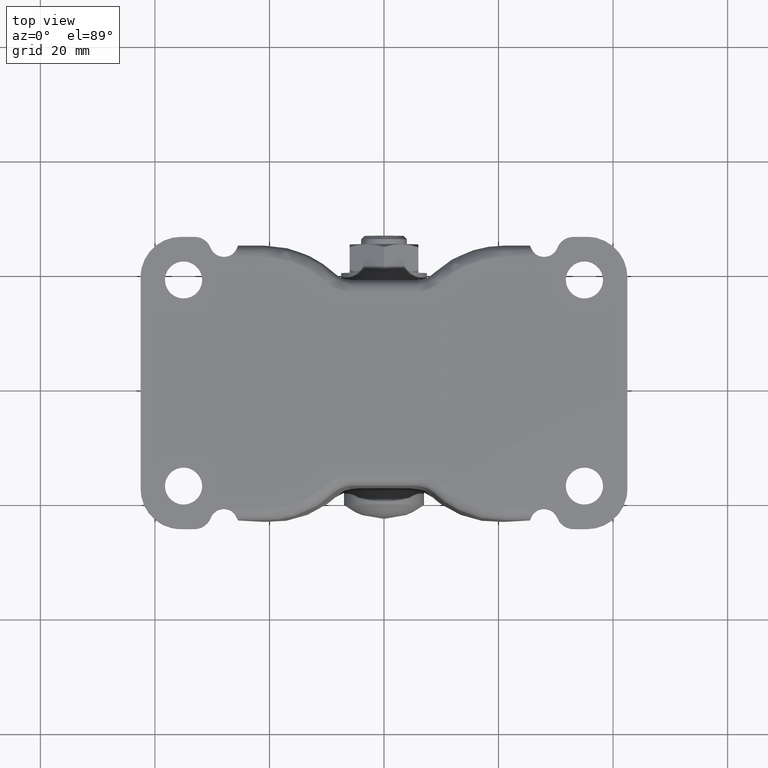
[diagram: clean part render]
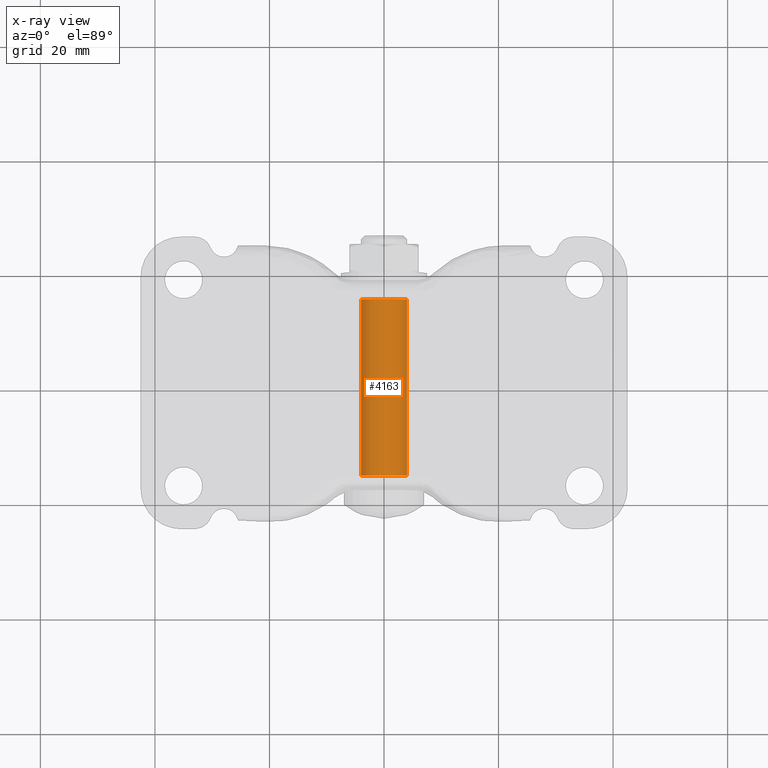
[diagram: x-ray — body ghosted, one internal face saturated and labeled with its STEP entity id]
A machine part, top view, then the same camera in x-ray: the body is ghosted and one INTERNAL B-rep face — a face not visible from any outside direction — is saturated and labeled: STEP entity #4163.
In plain terms, the highlighted face is a freeform B-spline surface patch.
Its self-contained STEP definition (entity closure, byte-faithful):
#3908=CARTESIAN_POINT('',(0.0,-15.403752000000001,4.000001891357421));
#3909=VERTEX_POINT('',#3908);
#3910=CARTESIAN_POINT('',(-3.992539193686369,-15.403752000000001,0.244196049514819));
#3911=VERTEX_POINT('',#3910);
#3912=CARTESIAN_POINT('',(0.0,-15.403752000000001,4.000001891357421));
#3913=CARTESIAN_POINT('',(-3.762824267605812,-15.403752000000003,4.000001891357420));
#3914=CARTESIAN_POINT('',(-3.992539193686365,-15.403751999999995,0.244196049514819));
#3922=(BOUNDED_CURVE()B_SPLINE_CURVE(2,(#3912,#3913,#3914),.UNSPECIFIED.,.F.,.U.)B_SPLINE_CURVE_WITH_KNOTS((3,3),(0.500000000000000,0.739332962241192),.UNSPECIFIED.)CURVE()GEOMETRIC_REPRESENTATION_ITEM()RATIONAL_B_SPLINE_CURVE((1.0,0.719603993284076,0.976072041671537))REPRESENTATION_ITEM(''));
#3923=EDGE_CURVE('',#3909,#3911,#3922,.T.);
#3925=CARTESIAN_POINT('',(3.992539193686369,-15.403752000000001,-0.244192266799985));
#3926=VERTEX_POINT('',#3925);
#3927=CARTESIAN_POINT('',(3.992539193686369,-15.403752000000004,-0.244192266799985));
#3928=CARTESIAN_POINT('',(4.000000000000000,-15.403751999999997,-0.122209161845944));
#3929=CARTESIAN_POINT('',(4.0,-15.403752000000001,0.000001891357421));
#3930=CARTESIAN_POINT('',(4.000000000000000,-15.403751999999994,4.000001891357421));
#3931=CARTESIAN_POINT('',(0.0,-15.403752000000001,4.000001891357421));
#3939=(BOUNDED_CURVE()B_SPLINE_CURVE(2,(#3927,#3928,#3929,#3930,#3931),.UNSPECIFIED.,.F.,.U.)B_SPLINE_CURVE_WITH_KNOTS((3,2,3),(0.239332962241191,0.250000000000000,0.500000000000000),.UNSPECIFIED.)CURVE()GEOMETRIC_REPRESENTATION_ITEM()RATIONAL_B_SPLINE_CURVE((0.976072041671537,0.987502787902472,1.0,0.707106781186548,1.0))REPRESENTATION_ITEM(''));
#3940=EDGE_CURVE('',#3926,#3909,#3939,.T.);
#4097=CARTESIAN_POINT('',(3.992539193687467,16.173939600000001,-0.244192266782008));
#4098=CARTESIAN_POINT('',(4.236733351826896,16.173939600000004,3.748346926905455));
#4099=CARTESIAN_POINT('',(0.244194158139429,16.173939600000001,3.992541085044891));
#4100=CARTESIAN_POINT('',(-3.748345035548041,16.173939600000004,4.236735243184312));
#4101=CARTESIAN_POINT('',(-3.992539193687467,16.173939600000001,0.244196049496850));
#4102=CARTESIAN_POINT('',(3.992539193687467,-16.193194290000001,-0.244192266782008));
#4103=CARTESIAN_POINT('',(4.236733351826896,-16.193194289999997,3.748346926905455));
#4104=CARTESIAN_POINT('',(0.244194158139429,-16.193194290000001,3.992541085044891));
#4105=CARTESIAN_POINT('',(-3.748345035548041,-16.193194289999997,4.236735243184312));
#4106=CARTESIAN_POINT('',(-3.992539193687467,-16.193194290000001,0.244196049496850));
#4114=(BOUNDED_SURFACE()B_SPLINE_SURFACE(2,1,((#4097,#4102),(#4098,#4103),(#4099,#4104),(#4100,#4105),(#4101,#4106)),.UNSPECIFIED.,.F.,.F.,.U.)B_SPLINE_SURFACE_WITH_KNOTS((3,2,3),(2,2),(0.0,6.627416997969526,13.254833995939050),(0.0,32.367133890000012),.UNSPECIFIED.)GEOMETRIC_REPRESENTATION_ITEM()RATIONAL_B_SPLINE_SURFACE(((1.0,1.0),(0.707106781186548,0.707106781186548),(1.0,1.0),(0.707106781186548,0.707106781186548),(1.0,1.0)))REPRESENTATION_ITEM('')SURFACE());
#4115=ORIENTED_EDGE('',*,*,#3940,.T.);
#4116=ORIENTED_EDGE('',*,*,#3923,.T.);
#4117=CARTESIAN_POINT('',(-3.992539193686369,15.403752000000001,0.244196049514827));
#4118=VERTEX_POINT('',#4117);
#4119=CARTESIAN_POINT('',(-3.992539193686369,15.403752000000001,0.244196049514827));
#4120=CARTESIAN_POINT('',(-3.992539193686369,-15.403752000000001,0.244196049514819));
#4121=QUASI_UNIFORM_CURVE('',1,(#4119,#4120),.UNSPECIFIED.,.F.,.U.);
#4122=EDGE_CURVE('',#4118,#3911,#4121,.T.);
#4123=ORIENTED_EDGE('',*,*,#4122,.F.);
#4124=CARTESIAN_POINT('',(0.0,15.403752000000001,4.000001891357421));
#4125=VERTEX_POINT('',#4124);
#4126=CARTESIAN_POINT('',(0.0,15.403752000000001,4.000001891357421));
#4127=CARTESIAN_POINT('',(-3.762824267605798,15.403751999999994,4.000001891357427));
#4128=CARTESIAN_POINT('',(-3.992539193686369,15.403751999999999,0.244196049514827));
#4136=(BOUNDED_CURVE()B_SPLINE_CURVE(2,(#4126,#4127,#4128),.UNSPECIFIED.,.F.,.U.)B_SPLINE_CURVE_WITH_KNOTS((3,3),(0.500000000000000,0.739332962241191),.UNSPECIFIED.)CURVE()GEOMETRIC_REPRESENTATION_ITEM()RATIONAL_B_SPLINE_CURVE((1.0,0.719603993284076,0.976072041671536))REPRESENTATION_ITEM(''));
#4137=EDGE_CURVE('',#4125,#4118,#4136,.T.);
#4138=ORIENTED_EDGE('',*,*,#4137,.F.);
#4139=CARTESIAN_POINT('',(3.992539193686369,15.403752000000001,-0.244192266799985));
#4140=VERTEX_POINT('',#4139);
#4141=CARTESIAN_POINT('',(3.992539193686369,15.403752000000003,-0.244192266799992));
#4142=CARTESIAN_POINT('',(4.000000000000001,15.403752000000001,-0.122209161845952));
#4143=CARTESIAN_POINT('',(4.0,15.403752000000001,0.000001891357421));
#4144=CARTESIAN_POINT('',(4.000000000000000,15.403751999999994,4.000001891357421));
#4145=CARTESIAN_POINT('',(0.0,15.403752000000001,4.000001891357421));
#4153=(BOUNDED_CURVE()B_SPLINE_CURVE(2,(#4141,#4142,#4143,#4144,#4145),.UNSPECIFIED.,.F.,.U.)B_SPLINE_CURVE_WITH_KNOTS((3,2,3),(0.239332962241191,0.250000000000000,0.500000000000000),.UNSPECIFIED.)CURVE()GEOMETRIC_REPRESENTATION_ITEM()RATIONAL_B_SPLINE_CURVE((0.976072041671536,0.987502787902471,1.0,0.707106781186548,1.0))REPRESENTATION_ITEM(''));
#4154=EDGE_CURVE('',#4140,#4125,#4153,.T.);
#4155=ORIENTED_EDGE('',*,*,#4154,.F.);
#4156=CARTESIAN_POINT('',(3.992539193686369,15.403752000000001,-0.244192266799985));
#4157=CARTESIAN_POINT('',(3.992539193686369,-15.403752000000001,-0.244192266799985));
#4158=QUASI_UNIFORM_CURVE('',1,(#4156,#4157),.UNSPECIFIED.,.F.,.U.);
#4159=EDGE_CURVE('',#4140,#3926,#4158,.T.);
#4160=ORIENTED_EDGE('',*,*,#4159,.T.);
#4161=EDGE_LOOP('',(#4115,#4116,#4123,#4138,#4155,#4160));
#4162=FACE_OUTER_BOUND('',#4161,.T.);
#4163=ADVANCED_FACE('',(#4162),#4114,.F.);